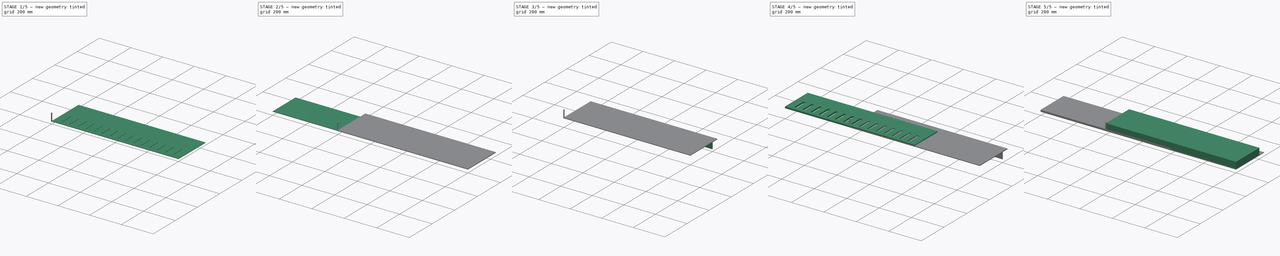
[diagram: build sequence overview — one tinted view per stage of 5, left to right]
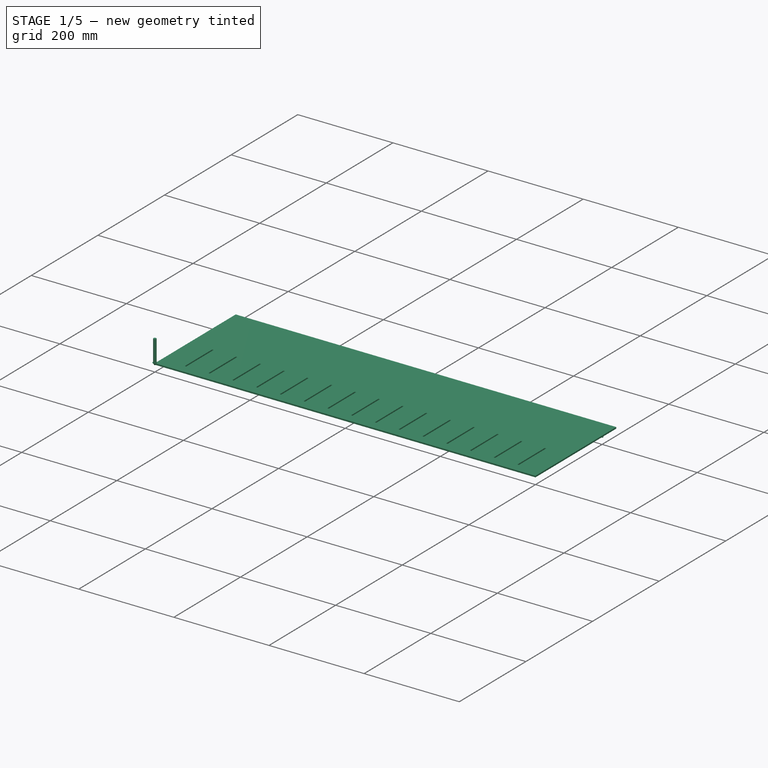
[diagram: stage 1 of 5 — iso view after this stage's code; geometry added in this stage tinted green]
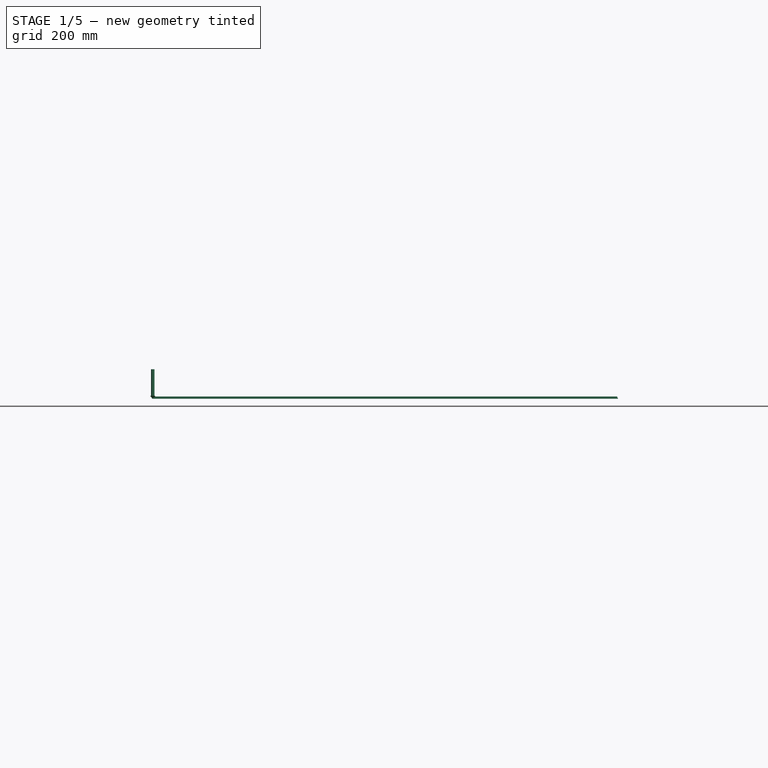
[diagram: stage 1 of 5 — front view after this stage's code; geometry added in this stage tinted green]
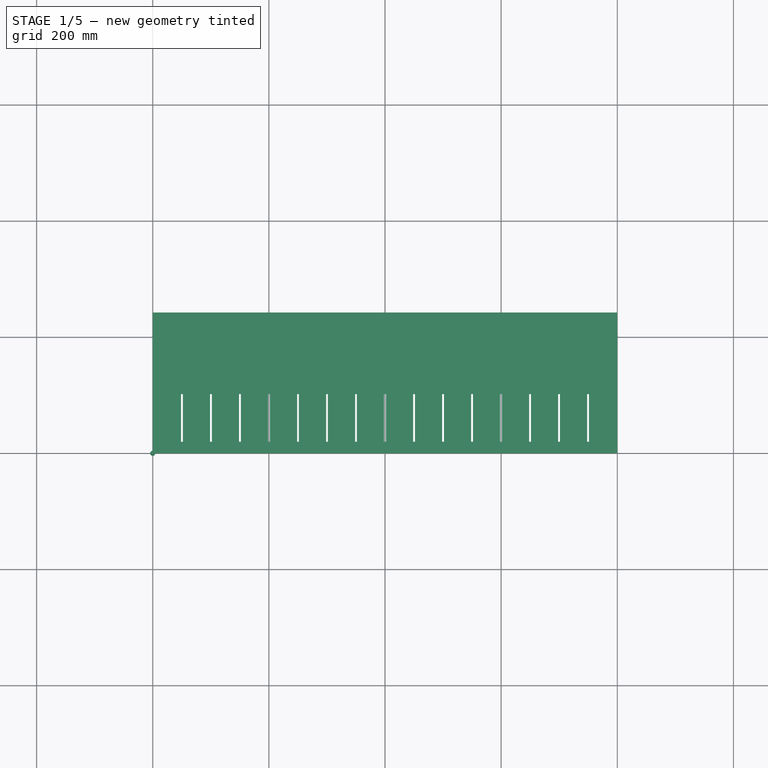
[diagram: stage 1 of 5 — top view after this stage's code; geometry added in this stage tinted green]
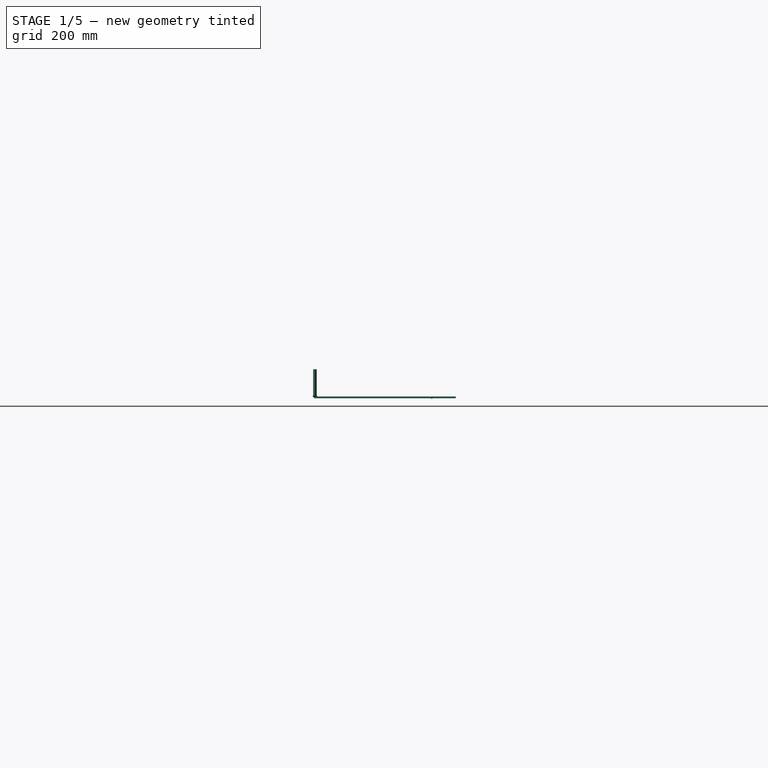
[diagram: stage 1 of 5 — right view after this stage's code; geometry added in this stage tinted green]
FCSTD DOCUMENT  (FreeCAD 0.20R29410 (Git))
Label: plywood_cutting_shield
License: All rights reserved
LicenseURL: http://en.wikipedia.org/wiki/All_rights_reserved
objects: Path::FeaturePython×14, App::DocumentObjectGroup×12, Part::FeaturePython×11, Sketcher::SketchObject×8, PartDesign::LinearPattern×4, App::FeaturePython×4, PartDesign::Pad×2, PartDesign::Pocket×2, PartDesign::MultiTransform×2, PartDesign::Body×2, PartDesign::Mirrored×1, PartDesign::CoordinateSystem×1, PartDesign::FeaturePython×1, Part::Feature×1, Part::Part2DObjectPython×1
note: 44 computed .brp shape members not serialized (recipe doc carries the construction recipe); baked Part::Feature solids carry a one-line shape summary decoded from their .brp
EXTERNAL_REF file=cutting_roll.FCStd obj=Sketch001
EXTERNAL_REF file=cutting_roll.FCStd obj=Pad

FEATURE [Path::FeaturePython] Job  # Path/CAM operation (typed FeaturePython)
  CycleTime = 00:03:06
  Fixtures = G54
  GeometryTolerance = 0.01
  JobType = 0
  LastPostProcessDate = 2022-12-21 19:00:36.126258
  LastPostProcessOutput = <userpath>/B653-DC8A/plywood_cutting_shield.Job.tap
  Model = -> Model
  Operations = -> Operations
  OrderOutputBy = 0
  PostProcessor = 11
  PostProcessorOutputFile = %d.%j.tap
  SetupSheet = -> SetupSheet
  SplitOutput = false
  Stock = -> Stock
  Tools = -> Tools
FEATURE [App::FeaturePython] SetupSheet002  # Path/CAM operation (typed FeaturePython)
  ClearanceHeightExpression = OpStockZMax+SetupSheet002.ClearanceHeightOffset
  ClearanceHeightOffset = 5
  CoolantMode = 0
  CoolantModes = None | Flood | Mist
  FinalDepthExpression = OpFinalDepth
  HorizRapid = 0
  SafeHeightExpression = OpStockZMax+SetupSheet002.SafeHeightOffset
  SafeHeightOffset = 3
  StartDepthExpression = OpStartDepth
  StepDownExpression = OpToolDiameter
  VertRapid = 0
FEATURE [Part::FeaturePython] ToolBit003  label="3.175mm Endmill010"  # Path/CAM toolbit (typed FeaturePython)
  BitPropertyNames = Chipload | CuttingEdgeHeight | Diameter | Flutes | Length | Material | ShankDiameter | SpindleDirection
  BitShape = <path>
  Chipload = 0
  CuttingEdgeHeight = 30
  Diameter = 3.17
  File = <userpath>/.local/share/FreeCAD/Macro/Bit/3.175mm_Endmill.fctb
  Flutes = 0
  Length = 10
  Material = 0
  ShankDiameter = 3
  ShapeName = endmill
  SpindleDirection = 0
FEATURE [Path::FeaturePython] __175mm_Endmill010  label="3.175mm Endmill011"  # Path/CAM operation (typed FeaturePython)
  HorizFeed = 51.6667
  HorizRapid = 0
  SpindleDir = 0
  SpindleSpeed = 21000
  Tool = -> ToolBit003
  ToolNumber = 2
  VertFeed = 16.6667
  VertRapid = 0
  expr: HorizRapid = SetupSheet002.HorizRapid
  expr: VertRapid = SetupSheet002.VertRapid
FEATURE [App::DocumentObjectGroup] Tools002
  Group = -> [__175mm_Endmill010]
FEATURE [Path::FeaturePython] Pocket3D001  # Path/CAM operation (typed FeaturePython)
  Active = true
  AdaptivePocketFinish = false
  AdaptivePocketStart = false
  AreaParams:
    Tolerance = 1e-07
    FitArcs = True
    Simplify = False
    CleanDistance = 0.0
    Accuracy = 0.01
    Unit = 1.0
    MinArcPoints = 4
    MaxArcPoints = 100
    ClipperScale = 10000000.0
    Fill = 0
    Coplanar = 0
    Reorient = True
    Outline = False
    Explode = False
    OpenMode = 0
    Deflection = 0.01
    SubjectFill = 0
    ClipFill = 0
    Offset = 0.0
    ExtraPass = 0
    Stepover = 0.0
    LastStepover = 0.0
    JoinType = 0
    EndType = 0
    MiterLimit = 2.0
    RoundPrecision = 0.0
    PocketMode = 1
    ToolRadius = 1.585
    PocketExtraOffset = 0.0
    PocketStepover = 3.17
    PocketLastStepover = 0.0
    FromCenter = True
    Angle = 45.0
    AngleShift = 0.0
    Shift = 0.0
    Thicken = False
    SectionCount = -1
    Stepdown = 1.0
    SectionOffset = 0.0
    SectionTolerance = 1e-06
    SectionMode = 2
    Project = False
  ClearanceHeight = 9
  CoolantMode = 0
  CutMode = 0
  CycleTime = 00:01:19
  ExtraOffset = 0
  FinalDepth = 0
  FinishDepth = 0
  HandleMultipleFeatures = 0
  KeepToolDown = true
  MinTravel = true
  OffsetPattern = 0
  OpFinalDepth = 0
  OpStartDepth = 4
  OpStockZMax = 4
  OpStockZMin = -0.1
  OpToolDiameter = 3.17
  PathParams = {'orientation': 1, 'sort_mode': 3, 'threshold': 3.171585, 'feedrate': 51.666666666666664, 'feedrate_v': 16.666666666666668, 'verbose': True, 'resume_height': 7.0, 'retraction': 9.0, 'return_end': True, 'preamble': False, 'start': Vector (0.0, 0.0, 0.0)}
  PocketLastStepOver = 0
  ProcessStockArea = false
  SafeHeight = 7
  SplitArcs = false
  StartAt = 0
  StartDepth = 4
  StartPoint = (0,0,0)
  StepDown = 3.17
  StepOver = 100
  ToolController = -> __175mm_Endmill010
  UseStartPoint = true
  ZigZagAngle = 45
  expr: ClearanceHeight = OpStockZMax + SetupSheet002.ClearanceHeightOffset
  expr: FinalDepth = OpFinalDepth
  expr: OpFinalDepth = 0mm
  expr: SafeHeight = OpStockZMax + SetupSheet002.SafeHeightOffset
  expr: StartDepth = OpStartDepth
  expr: StepDown = OpToolDiameter
FEATURE [Part::Feature] Unfold
  shape: bbox 800 x 242.5 x 3 mm, 66 faces (baked)
FEATURE [Sketcher::SketchObject] Unfold_Sketch
  FullyConstrained = false
  sketch-geometry (64):
    g0: LineSegment StartX=800 StartY=242.513 StartZ=0 EndX=0 EndY=242.513 EndZ=0
    g1: LineSegment StartX=0 StartY=242.513 StartZ=0 EndX=0 EndY=0 EndZ=0
    g2: LineSegment StartX=0 StartY=0 StartZ=0 EndX=800 EndY=0 EndZ=0
    g3: LineSegment StartX=800 StartY=0 StartZ=0 EndX=800 EndY=242.513 EndZ=0
    g4: LineSegment StartX=448.36 StartY=102 StartZ=0 EndX=451.54 EndY=102 EndZ=0
    g5: LineSegment StartX=451.54 StartY=102 StartZ=0 EndX=451.54 EndY=20 EndZ=0
    g6: LineSegment StartX=451.54 StartY=20 StartZ=0 EndX=448.36 EndY=20 EndZ=0
    g7: LineSegment StartX=448.36 StartY=20 StartZ=0 EndX=448.36 EndY=102 EndZ=0
    g8: LineSegment StartX=401.59 StartY=20 StartZ=0 EndX=398.41 EndY=20 EndZ=0
    g9: LineSegment StartX=398.41 StartY=102 StartZ=0 EndX=398.41 EndY=20 EndZ=0
    g10: LineSegment StartX=401.59 StartY=102 StartZ=0 EndX=398.41 EndY=102 EndZ=0
    g11: LineSegment StartX=401.59 StartY=102 StartZ=0 EndX=401.59 EndY=20 EndZ=0
    g12: LineSegment StartX=498.31 StartY=102 StartZ=0 EndX=501.49 EndY=102 EndZ=0
    g13: LineSegment StartX=501.49 StartY=102 StartZ=0 EndX=501.49 EndY=20 EndZ=0
    g14: LineSegment StartX=501.49 StartY=20 StartZ=0 EndX=498.31 EndY=20 EndZ=0
    g15: LineSegment StartX=498.31 StartY=20 StartZ=0 EndX=498.31 EndY=102 EndZ=0
    g16: LineSegment StartX=348.46 StartY=20 StartZ=0 EndX=351.64 EndY=20 EndZ=0
    g17: LineSegment StartX=348.46 StartY=102 StartZ=0 EndX=348.46 EndY=20 EndZ=0
    g18: LineSegment StartX=351.64 StartY=102 StartZ=0 EndX=348.46 EndY=102 EndZ=0
    g19: LineSegment StartX=351.64 StartY=20 StartZ=0 EndX=351.64 EndY=102 EndZ=0
    g20: LineSegment StartX=298.51 StartY=20 StartZ=0 EndX=301.69 EndY=20 EndZ=0
    g21: LineSegment StartX=298.51 StartY=102 StartZ=0 EndX=298.51 EndY=20 EndZ=0
    g22: LineSegment StartX=301.69 StartY=102 StartZ=0 EndX=298.51 EndY=102 EndZ=0
    g23: LineSegment StartX=301.69 StartY=20 StartZ=0 EndX=301.69 EndY=102 EndZ=0
    g24: LineSegment StartX=548.26 StartY=102 StartZ=0 EndX=551.44 EndY=102 EndZ=0
    g25: LineSegment StartX=551.44 StartY=102 StartZ=0 EndX=551.44 EndY=20 EndZ=0
    g26: LineSegment StartX=551.44 StartY=20 StartZ=0 EndX=548.26 EndY=20 EndZ=0
    g27: LineSegment StartX=548.26 StartY=20 StartZ=0 EndX=548.26 EndY=102 EndZ=0
    g28: LineSegment StartX=598.21 StartY=102 StartZ=0 EndX=601.39 EndY=102 EndZ=0
    g29: LineSegment StartX=601.39 StartY=102 StartZ=0 EndX=601.39 EndY=20 EndZ=0
    g30: LineSegment StartX=601.39 StartY=20 StartZ=0 EndX=598.21 EndY=20 EndZ=0
    g31: LineSegment StartX=598.21 StartY=20 StartZ=0 EndX=598.21 EndY=102 EndZ=0
    g32: LineSegment StartX=648.16 StartY=102 StartZ=0 EndX=651.34 EndY=102 EndZ=0
    g33: LineSegment StartX=651.34 StartY=102 StartZ=0 EndX=651.34 EndY=20 EndZ=0
    g34: LineSegment StartX=651.34 StartY=20 StartZ=0 EndX=648.16 EndY=20 EndZ=0
    g35: LineSegment StartX=648.16 StartY=20 StartZ=0 EndX=648.16 EndY=102 EndZ=0
    g36: LineSegment StartX=248.56 StartY=20 StartZ=0 EndX=251.74 EndY=20 EndZ=0
    g37: LineSegment StartX=248.56 StartY=102 StartZ=0 EndX=248.56 EndY=20 EndZ=0
    g38: LineSegment StartX=251.74 StartY=102 StartZ=0 EndX=248.56 EndY=102 EndZ=0
    g39: LineSegment StartX=251.74 StartY=20 StartZ=0 EndX=251.74 EndY=102 EndZ=0
    g40: LineSegment StartX=198.61 StartY=20 StartZ=0 EndX=201.79 EndY=20 EndZ=0
    g41: LineSegment StartX=198.61 StartY=102 StartZ=0 EndX=198.61 EndY=20 EndZ=0
    g42: LineSegment StartX=201.79 StartY=102 StartZ=0 EndX=198.61 EndY=102 EndZ=0
    g43: LineSegment StartX=201.79 StartY=20 StartZ=0 EndX=201.79 EndY=102 EndZ=0
    g44: LineSegment StartX=148.66 StartY=20 StartZ=0 EndX=151.84 EndY=20 EndZ=0
    g45: LineSegment StartX=148.66 StartY=102 StartZ=0 EndX=148.66 EndY=20 EndZ=0
    g46: LineSegment StartX=151.84 StartY=102 StartZ=0 EndX=148.66 EndY=102 EndZ=0
    g47: LineSegment StartX=151.84 StartY=20 StartZ=0 EndX=151.84 EndY=102 EndZ=0
    g48: LineSegment StartX=698.11 StartY=102 StartZ=0 EndX=701.29 EndY=102 EndZ=0
    g49: LineSegment StartX=701.29 StartY=102 StartZ=0 EndX=701.29 EndY=20 EndZ=0
    g50: LineSegment StartX=701.29 StartY=20 StartZ=0 EndX=698.11 EndY=20 EndZ=0
    g51: LineSegment StartX=698.11 StartY=20 StartZ=0 EndX=698.11 EndY=102 EndZ=0
    g52: LineSegment StartX=98.71 StartY=20 StartZ=0 EndX=101.89 EndY=20 EndZ=0
    g53: LineSegment StartX=98.71 StartY=102 StartZ=0 EndX=98.71 EndY=20 EndZ=0
    g54: LineSegment StartX=101.89 StartY=102 StartZ=0 EndX=98.71 EndY=102 EndZ=0
    g55: LineSegment StartX=101.89 StartY=20 StartZ=0 EndX=101.89 EndY=102 EndZ=0
    g56: LineSegment StartX=748.06 StartY=102 StartZ=0 EndX=751.24 EndY=102 EndZ=0
    g57: LineSegment StartX=751.24 StartY=102 StartZ=0 EndX=751.24 EndY=20 EndZ=0
    g58: LineSegment StartX=751.24 StartY=20 StartZ=0 EndX=748.06 EndY=20 EndZ=0
    g59: LineSegment StartX=748.06 StartY=20 StartZ=0 EndX=748.06 EndY=102 EndZ=0
    g60: LineSegment StartX=48.76 StartY=20 StartZ=0 EndX=51.94 EndY=20 EndZ=0
    g61: LineSegment StartX=48.76 StartY=102 StartZ=0 EndX=48.76 EndY=20 EndZ=0
    g62: LineSegment StartX=51.94 StartY=102 StartZ=0 EndX=48.76 EndY=102 EndZ=0
    g63: LineSegment StartX=51.94 StartY=20 StartZ=0 EndX=51.94 EndY=102 EndZ=0
FEATURE [Sketcher::SketchObject] Unfold_Sketch_Outline
  FullyConstrained = false
  sketch-geometry (4):
    g0: LineSegment StartX=800 StartY=242.513 StartZ=0 EndX=0 EndY=242.513 EndZ=0
    g1: LineSegment StartX=0 StartY=242.513 StartZ=0 EndX=0 EndY=0 EndZ=0
    g2: LineSegment StartX=0 StartY=0 StartZ=0 EndX=800 EndY=0 EndZ=0
    g3: LineSegment StartX=800 StartY=0 StartZ=0 EndX=800 EndY=242.513 EndZ=0
FEATURE [Sketcher::SketchObject] Unfold_Sketch_Internal
  FullyConstrained = false
  sketch-geometry (60):
    g0: LineSegment StartX=48.76 StartY=20 StartZ=0 EndX=51.94 EndY=20 EndZ=0
    g1: LineSegment StartX=51.94 StartY=20 StartZ=0 EndX=51.94 EndY=102 EndZ=0
    g2: LineSegment StartX=51.94 StartY=102 StartZ=0 EndX=48.76 EndY=102 EndZ=0
    g3: LineSegment StartX=48.76 StartY=102 StartZ=0 EndX=48.76 EndY=20 EndZ=0
    g4: LineSegment StartX=748.06 StartY=102 StartZ=0 EndX=751.24 EndY=102 EndZ=0
    g5: LineSegment StartX=751.24 StartY=102 StartZ=0 EndX=751.24 EndY=20 EndZ=0
    g6: LineSegment StartX=751.24 StartY=20 StartZ=0 EndX=748.06 EndY=20 EndZ=0
    g7: LineSegment StartX=748.06 StartY=20 StartZ=0 EndX=748.06 EndY=102 EndZ=0
    g8: LineSegment StartX=98.71 StartY=20 StartZ=0 EndX=101.89 EndY=20 EndZ=0
    g9: LineSegment StartX=101.89 StartY=20 StartZ=0 EndX=101.89 EndY=102 EndZ=0
    g10: LineSegment StartX=101.89 StartY=102 StartZ=0 EndX=98.71 EndY=102 EndZ=0
    g11: LineSegment StartX=98.71 StartY=102 StartZ=0 EndX=98.71 EndY=20 EndZ=0
    g12: LineSegment StartX=148.66 StartY=20 StartZ=0 EndX=151.84 EndY=20 EndZ=0
    g13: LineSegment StartX=151.84 StartY=20 StartZ=0 EndX=151.84 EndY=102 EndZ=0
    g14: LineSegment StartX=151.84 StartY=102 StartZ=0 EndX=148.66 EndY=102 EndZ=0
    g15: LineSegment StartX=148.66 StartY=102 StartZ=0 EndX=148.66 EndY=20 EndZ=0
    g16: LineSegment StartX=198.61 StartY=20 StartZ=0 EndX=201.79 EndY=20 EndZ=0
    g17: LineSegment StartX=201.79 StartY=20 StartZ=0 EndX=201.79 EndY=102 EndZ=0
    g18: LineSegment StartX=201.79 StartY=102 StartZ=0 EndX=198.61 EndY=102 EndZ=0
    g19: LineSegment StartX=198.61 StartY=102 StartZ=0 EndX=198.61 EndY=20 EndZ=0
    g20: LineSegment StartX=248.56 StartY=20 StartZ=0 EndX=251.74 EndY=20 EndZ=0
    g21: LineSegment StartX=251.74 StartY=20 StartZ=0 EndX=251.74 EndY=102 EndZ=0
    g22: LineSegment StartX=251.74 StartY=102 StartZ=0 EndX=248.56 EndY=102 EndZ=0
    g23: LineSegment StartX=248.56 StartY=102 StartZ=0 EndX=248.56 EndY=20 EndZ=0
    g24: LineSegment StartX=648.16 StartY=102 StartZ=0 EndX=651.34 EndY=102 EndZ=0
    g25: LineSegment StartX=651.34 StartY=102 StartZ=0 EndX=651.34 EndY=20 EndZ=0
    g26: LineSegment StartX=651.34 StartY=20 StartZ=0 EndX=648.16 EndY=20 EndZ=0
    g27: LineSegment StartX=648.16 StartY=20 StartZ=0 EndX=648.16 EndY=102 EndZ=0
    g28: LineSegment StartX=598.21 StartY=102 StartZ=0 EndX=601.39 EndY=102 EndZ=0
    g29: LineSegment StartX=601.39 StartY=102 StartZ=0 EndX=601.39 EndY=20 EndZ=0
    g30: LineSegment StartX=601.39 StartY=20 StartZ=0 EndX=598.21 EndY=20 EndZ=0
    g31: LineSegment StartX=598.21 StartY=20 StartZ=0 EndX=598.21 EndY=102 EndZ=0
    g32: LineSegment StartX=548.26 StartY=102 StartZ=0 EndX=551.44 EndY=102 EndZ=0
    g33: LineSegment StartX=551.44 StartY=102 StartZ=0 EndX=551.44 EndY=20 EndZ=0
    g34: LineSegment StartX=551.44 StartY=20 StartZ=0 EndX=548.26 EndY=20 EndZ=0
    g35: LineSegment StartX=548.26 StartY=20 StartZ=0 EndX=548.26 EndY=102 EndZ=0
    g36: LineSegment StartX=298.51 StartY=20 StartZ=0 EndX=301.69 EndY=20 EndZ=0
    g37: LineSegment StartX=301.69 StartY=20 StartZ=0 EndX=301.69 EndY=102 EndZ=0
    g38: LineSegment StartX=301.69 StartY=102 StartZ=0 EndX=298.51 EndY=102 EndZ=0
    g39: LineSegment StartX=298.51 StartY=102 StartZ=0 EndX=298.51 EndY=20 EndZ=0
    g40: LineSegment StartX=348.46 StartY=20 StartZ=0 EndX=351.64 EndY=20 EndZ=0
    g41: LineSegment StartX=351.64 StartY=20 StartZ=0 EndX=351.64 EndY=102 EndZ=0
    g42: LineSegment StartX=351.64 StartY=102 StartZ=0 EndX=348.46 EndY=102 EndZ=0
    g43: LineSegment StartX=348.46 StartY=102 StartZ=0 EndX=348.46 EndY=20 EndZ=0
    g44: LineSegment StartX=498.31 StartY=102 StartZ=0 EndX=501.49 EndY=102 EndZ=0
    g45: LineSegment StartX=501.49 StartY=102 StartZ=0 EndX=501.49 EndY=20 EndZ=0
    g46: LineSegment StartX=501.49 StartY=20 StartZ=0 EndX=498.31 EndY=20 EndZ=0
    g47: LineSegment StartX=498.31 StartY=20 StartZ=0 EndX=498.31 EndY=102 EndZ=0
    g48: LineSegment StartX=401.59 StartY=20 StartZ=0 EndX=398.41 EndY=20 EndZ=0
    g49: LineSegment StartX=398.41 StartY=102 StartZ=0 EndX=398.41 EndY=20 EndZ=0
    g50: LineSegment StartX=401.59 StartY=102 StartZ=0 EndX=398.41 EndY=102 EndZ=0
    g51: LineSegment StartX=401.59 StartY=102 StartZ=0 EndX=401.59 EndY=20 EndZ=0
    g52: LineSegment StartX=448.36 StartY=102 StartZ=0 EndX=451.54 EndY=102 EndZ=0
    g53: LineSegment StartX=451.54 StartY=102 StartZ=0 EndX=451.54 EndY=20 EndZ=0
    g54: LineSegment StartX=451.54 StartY=20 StartZ=0 EndX=448.36 EndY=20 EndZ=0
    g55: LineSegment StartX=448.36 StartY=20 StartZ=0 EndX=448.36 EndY=102 EndZ=0
    g56: LineSegment StartX=698.11 StartY=102 StartZ=0 EndX=701.29 EndY=102 EndZ=0
    g57: LineSegment StartX=701.29 StartY=102 StartZ=0 EndX=701.29 EndY=20 EndZ=0
    g58: LineSegment StartX=701.29 StartY=20 StartZ=0 EndX=698.11 EndY=20 EndZ=0
    g59: LineSegment StartX=698.11 StartY=20 StartZ=0 EndX=698.11 EndY=102 EndZ=0
FEATURE [Sketcher::SketchObject] Unfold_Sketch_bends
  FullyConstrained = false
  sketch-geometry (1):
    g0: LineSegment StartX=0 StartY=201.257 StartZ=0 EndX=800 EndY=201.257 EndZ=0
FEATURE [Part::FeaturePython] Clone002  label="Model-Unfold"  # Draft clone (typed FeaturePython)
  AttacherType = Attacher::AttachEngine3D
  Fuse = false
  Objects = -> [Unfold]
  PathResource = Model
  Scale = (1,1,1)
FEATURE [App::FeaturePython] SetupSheet003  # Path/CAM operation (typed FeaturePython)
  ClearanceHeightExpression = OpStockZMax+SetupSheet003.ClearanceHeightOffset
  ClearanceHeightOffset = 5
  CoolantMode = 0
  CoolantModes = None | Flood | Mist
  FinalDepthExpression = OpFinalDepth
  HorizRapid = 0
  SafeHeightExpression = OpStockZMax+SetupSheet003.SafeHeightOffset
  SafeHeightOffset = 3
  StartDepthExpression = OpStartDepth
  StepDownExpression = OpToolDiameter
  VertRapid = 0
FEATURE [Part::Part2DObjectPython] Clone2D  label="Model-Unfold_Sketch_bends"  # Draft 2D object (typed FeaturePython)
  Fuse = false
  Objects = -> [Unfold_Sketch_bends]
  PathResource = Model
  Scale = (1,1,1)
FEATURE [App::DocumentObjectGroup] Model003
  Group = -> [Clone2D]
FEATURE [Part::FeaturePython] Stock003  # WARN: FeaturePython — macro-defined, semantics opaque (R4)
  Base = -> Model003
  ExtXneg = 1
  ExtXpos = 1
  ExtYneg = 1
  ExtYpos = 1
  ExtZneg = 1
  ExtZpos = 1
  Placement = pos=(0,201.257,0) rot=(0,0,1;0rad)
  StockType = FromBase
FEATURE [Part::FeaturePython] ToolBit004  label="NZV6109015"  # Path/CAM toolbit (typed FeaturePython)
  BitPropertyNames = Chipload | CuttingEdgeAngle | CuttingEdgeHeight | Diameter | Flutes | Length | Material | ShankDiameter | TipDiameter
  BitShape = <path>
  Chipload = 0
  CuttingEdgeAngle = 90
  CuttingEdgeHeight = 4
  Diameter = 10
  File = <userpath>/.local/share/FreeCAD/Macro/Bit/NZV6109010.fctb
  Flutes = 0
  Length = 50
  Material = 0
  ShankDiameter = 6
  ShapeName = chamfer
  TipDiameter = 1
FEATURE [Path::FeaturePython] NZV6109015  label="NZV6109016"  # Path/CAM operation (typed FeaturePython)
  HorizFeed = 51.6667
  HorizRapid = 0
  SpindleDir = 0
  SpindleSpeed = 18000
  Tool = -> ToolBit004
  ToolNumber = 2
  VertFeed = 16.6667
  VertRapid = 0
  expr: HorizRapid = SetupSheet003.HorizRapid
  expr: VertRapid = SetupSheet003.VertRapid
FEATURE [App::DocumentObjectGroup] Tools003
  Group = -> [NZV6109015]
FEATURE [Path::FeaturePython] Engrave  # Path/CAM operation (typed FeaturePython)
  Active = true
  Base = -> [Clone2D]
  ClearanceHeight = 6
  CoolantMode = 0
  CycleTime = 00:00:20
  FinalDepth = 0.4
  OpFinalDepth = -10
  OpStartDepth = 0
  OpStockZMax = 1
  OpStockZMin = -1
  OpToolDiameter = 10
  SafeHeight = 4
  StartDepth = 3
  StartVertex = 0
  StepDown = 10
  ToolController = -> NZV6109015
  expr: ClearanceHeight = OpStockZMax + SetupSheet003.ClearanceHeightOffset
  expr: FinalDepth = 0.4
  expr: SafeHeight = OpStockZMax + SetupSheet003.SafeHeightOffset
  expr: StartDepth = 3
  expr: StepDown = OpToolDiameter
FEATURE [App::DocumentObjectGroup] Operations003
  Group = -> [Engrave]
FEATURE [Path::FeaturePython] Job003  label="bend"  # Path/CAM operation (typed FeaturePython)
  CycleTime = 00:00:20
  Fixtures = G54
  GeometryTolerance = 0.01
  JobType = 0
  LastPostProcessDate = 2022-12-26 20:15:40.999140
  LastPostProcessOutput = <userpath>/B653-DC8A/plywood_cutting_shield.bend.tap
  Model = -> Model003
  Operations = -> Operations003
  OrderOutputBy = 0
  PostProcessor = 11
  PostProcessorOutputFile = %d.%j.tap
  SetupSheet = -> SetupSheet003
  SplitOutput = false
  Stock = -> Stock003
  Tools = -> Tools003
FEATURE [Path::FeaturePython] Profile001  # Path/CAM operation (typed FeaturePython)
  Active = true
  AreaParams:
    Tolerance = 1e-07
    FitArcs = True
    Simplify = False
    CleanDistance = 0.0
    Accuracy = 0.01
    Unit = 1.0
    MinArcPoints = 4
    MaxArcPoints = 100
    ClipperScale = 10000000.0
    Fill = 0
    Coplanar = 0
    Reorient = True
    Outline = False
    Explode = False
    OpenMode = 0
    Deflection = 0.01
    SubjectFill = 0
    ClipFill = 0
    Offset = 1.585
    ExtraPass = 0
    Stepover = 0.0
    LastStepover = 0.0
    JoinType = 0
    EndType = 0
    MiterLimit = 2.0
    RoundPrecision = 0.0
    PocketMode = 0
    ToolRadius = 1.0
    PocketExtraOffset = 0.0
    PocketStepover = 0.0
    PocketLastStepover = 0.0
    FromCenter = False
    Angle = 45.0
    AngleShift = 0.0
    Shift = 0.0
    Thicken = False
    SectionCount = -1
    Stepdown = 1.0
    SectionOffset = 0.0
    SectionTolerance = 1e-06
    SectionMode = 2
    Project = False
  ClearanceHeight = 9
  CoolantMode = 0
  CycleTime = 00:01:38
  Direction = 0
  FinalDepth = -0.1
  HandleMultipleFeatures = 0
  JoinType = 0
  MiterLimit = 0.1
  OffsetExtra = 0
  OpFinalDepth = -0.1
  OpStartDepth = 4
  OpStockZMax = 4
  OpStockZMin = -0.1
  OpToolDiameter = 3.17
  PathParams = {'orientation': 1, 'feedrate': 51.666666666666664, 'feedrate_v': 16.666666666666668, 'verbose': True, 'resume_height': 7.0, 'retraction': 9.0, 'return_end': True, 'preamble': False}
  SafeHeight = 7
  Side = 0
  SplitArcs = false
  StartDepth = 4
  StartPoint = (0,0,0)
  StepDown = 3.17
  ToolController = -> __175mm_Endmill010
  UseComp = true
  UseStartPoint = false
  processCircles = false
  processHoles = false
  processPerimeter = true
  expr: ClearanceHeight = OpStockZMax + SetupSheet002.ClearanceHeightOffset
  expr: FinalDepth = OpFinalDepth
  expr: SafeHeight = OpStockZMax + SetupSheet002.SafeHeightOffset
  expr: StartDepth = OpStartDepth
  expr: StepDown = OpToolDiameter
FEATURE [App::DocumentObjectGroup] Operations002
  Group = -> [Pocket3D001,Profile001]
FEATURE [Path::FeaturePython] Job002  label="profile"  # Path/CAM operation (typed FeaturePython)
  CycleTime = 00:02:57
  Fixtures = G54
  GeometryTolerance = 0.01
  JobType = 0
  LastPostProcessDate = 2022-12-26 20:15:33.071143
  LastPostProcessOutput = <userpath>/B653-DC8A/plywood_cutting_shield.profile.tap
  Model = -> Model002
  Operations = -> Operations002
  OrderOutputBy = 0
  PostProcessor = 11
  PostProcessorOutputFile = %d.%j.tap
  SetupSheet = -> SetupSheet002
  SplitOutput = false
  Stock = -> Stock002
  Tools = -> Tools002
note: 4 file-system paths scrubbed to <path> (originals preserved in the JSON sidecar)
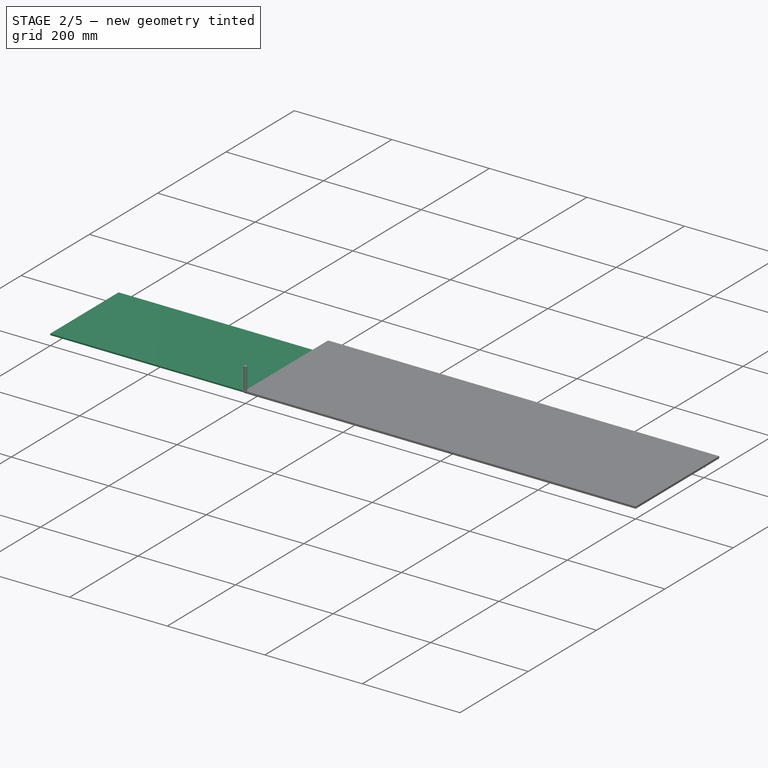
[diagram: stage 2 of 5 — iso view after this stage's code; geometry added in this stage tinted green]
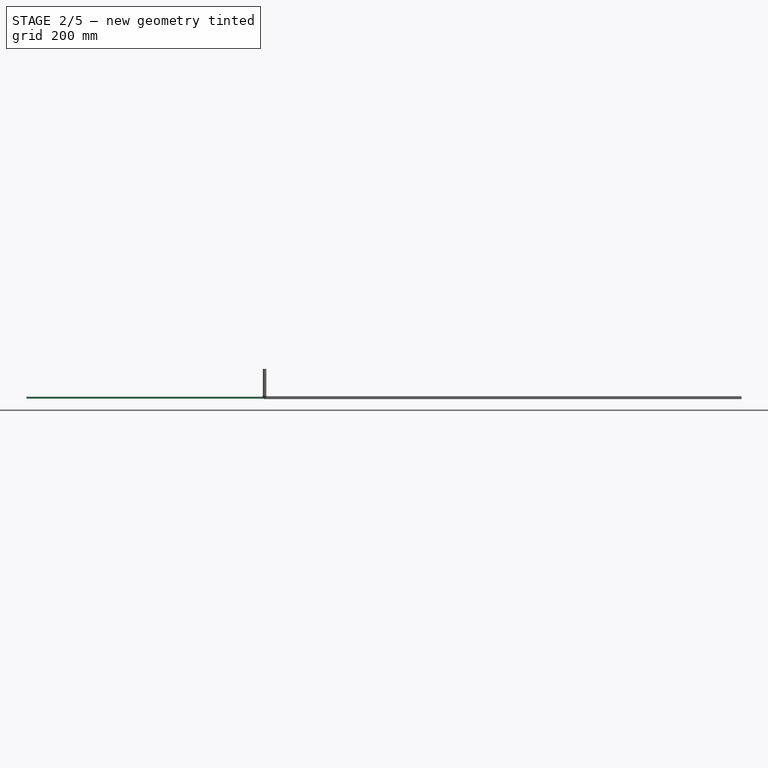
[diagram: stage 2 of 5 — front view after this stage's code; geometry added in this stage tinted green]
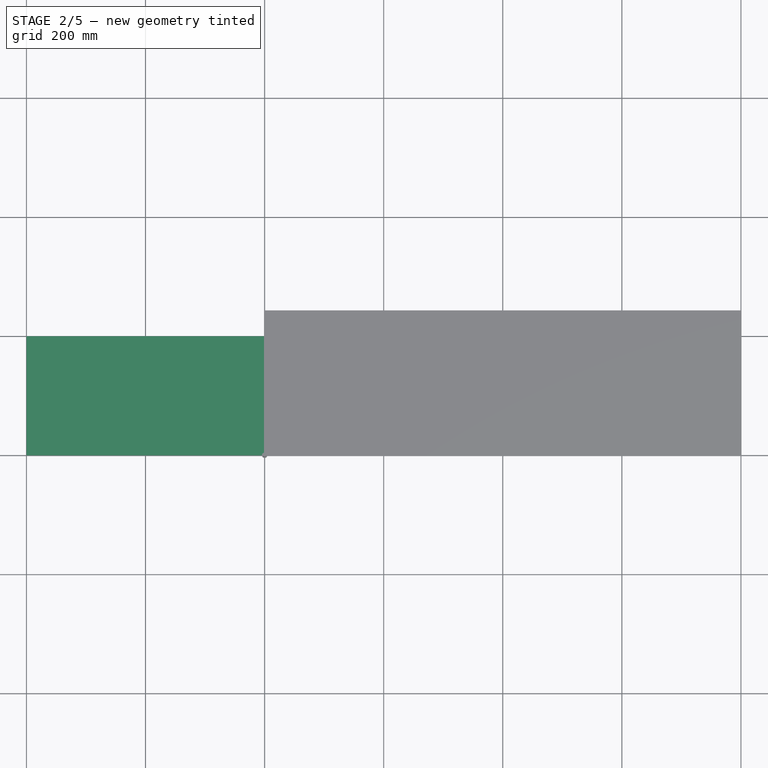
[diagram: stage 2 of 5 — top view after this stage's code; geometry added in this stage tinted green]
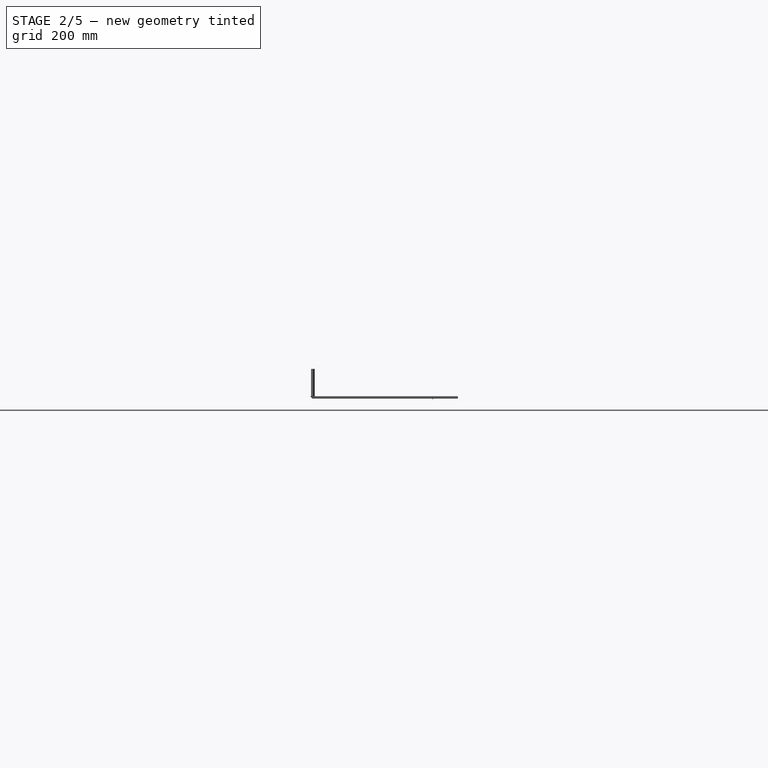
[diagram: stage 2 of 5 — right view after this stage's code; geometry added in this stage tinted green]
FEATURE [Sketcher::SketchObject] Sketch
  FullyConstrained = true
  MapMode = 5
  Support = -> [XY_Plane]
  sketch-geometry (4):
    g0: LineSegment StartX=0 StartY=0 StartZ=0 EndX=400 EndY=0 EndZ=0
    g1: LineSegment StartX=400 StartY=0 StartZ=0 EndX=400 EndY=200 EndZ=0
    g2: LineSegment StartX=400 StartY=200 StartZ=0 EndX=0 EndY=200 EndZ=0
    g3: LineSegment StartX=0 StartY=200 StartZ=0 EndX=0 EndY=0 EndZ=0
  constraints (11):
    c: Coincident(g0,g1)
    c: Coincident(g1,g2)
    c: Coincident(g2,g3)
    c: Coincident(g3,g0)
    c: Horizontal(g0)
    c: Horizontal(g2)
    c: Vertical(g1)
    c: Vertical(g3)
    c: Coincident(g0,g-1)
    c: Distance(g0) = 400
    c: Distance(g3) = 200
FEATURE [PartDesign::Pad] Pad
  Direction = (0,0,1)
  Length = 3
  Length2 = 10
  Profile = -> Sketch
  ReferenceAxis = -> Sketch [N_Axis]
  Type = 0
FEATURE [Sketcher::SketchObject] Sketch001
  AttachmentOffset = pos=(0,20,0) rot=(0,0,1;0rad)
  FullyConstrained = true
  MapMode = 5
  Placement = pos=(0,20,0) rot=(0,0,1;0rad)
  Support = -> [XY_Plane]
  expr: .Constraints.length = cutting_roll#<<disk_sketch>>.Constraints.r * 2 + 6mm
  sketch-geometry (5):
    g0: LineSegment StartX=1.59 StartY=0 StartZ=0 EndX=1.59 EndY=82 EndZ=0
    g1: LineSegment StartX=1.59 StartY=82 StartZ=0 EndX=-1.59 EndY=82 EndZ=0
    g2: LineSegment StartX=-1.59 StartY=82 StartZ=0 EndX=-1.59 EndY=0 EndZ=0
    g3: LineSegment StartX=-1.59 StartY=0 StartZ=0 EndX=0 EndY=0 EndZ=0
    g4: LineSegment StartX=0 StartY=0 StartZ=0 EndX=1.59 EndY=0 EndZ=0
  constraints (14):
    c: Coincident(g0,g1)
    c: Coincident(g1,g2)
    c: Horizontal(g1)
    c: Vertical(g0)
    c: Vertical(g2)
    c: PointOnObject(g2,g-1)
    c: Distance(g2) = 82  'length'
    c: Distance(g1) = 3.18  'width'
    c: Coincident(g3,g2)
    c: Coincident(g4,g0)
    c: Coincident(g3,g4)
    c: Horizontal(g4)
    c: Equal(g3,g4)
    c: Coincident(g-1,g3)
FEATURE [PartDesign::Pocket] Pocket
  BaseFeature = -> Pad
  Direction = (0,0,-1)
  Length = 5
  Length2 = 5
  Profile = -> Sketch001
  ReferenceAxis = -> Sketch001 [N_Axis]
  Reversed = true
  Type = 1
FEATURE [PartDesign::Mirrored] Mirrored
  BaseFeature = -> Pocket
  MirrorPlane = -> Sketch [V_Axis]
  Originals = -> [Pad]
FEATURE [App::DocumentObjectGroup] Model002
  Group = -> [Clone002]
FEATURE [Part::FeaturePython] Stock002  # WARN: FeaturePython — macro-defined, semantics opaque (R4)
  Base = -> Model002
  ExtXneg = 1
  ExtXpos = 1
  ExtYneg = 1
  ExtYpos = 1
  ExtZneg = 0.1
  ExtZpos = 1
  StockType = FromBase
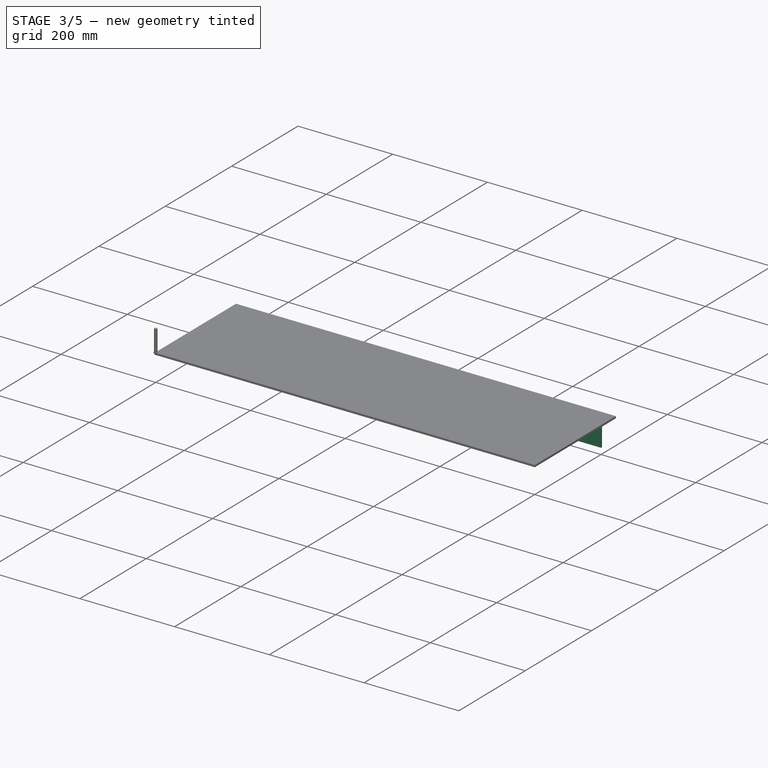
[diagram: stage 3 of 5 — iso view after this stage's code; geometry added in this stage tinted green]
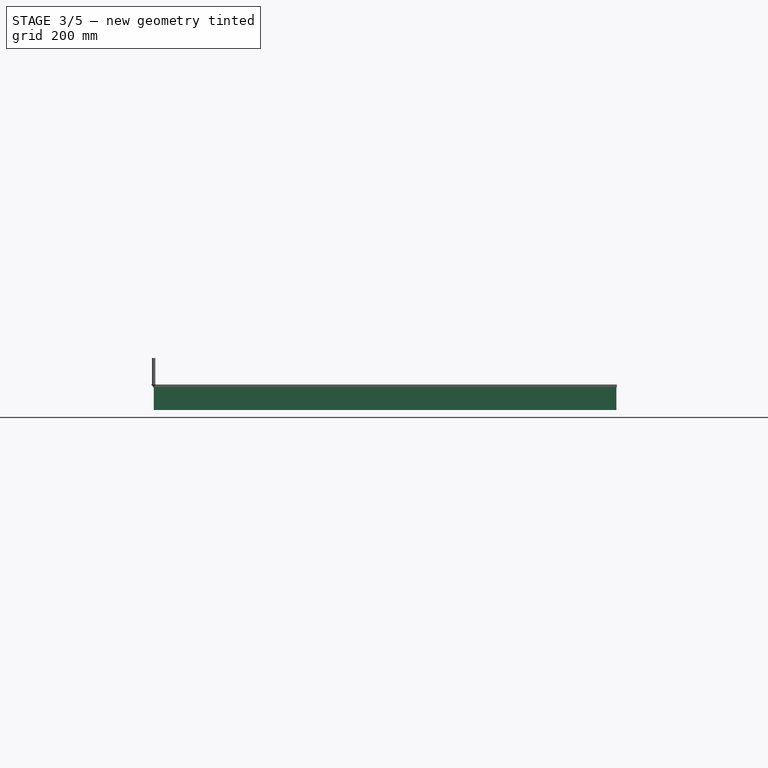
[diagram: stage 3 of 5 — front view after this stage's code; geometry added in this stage tinted green]
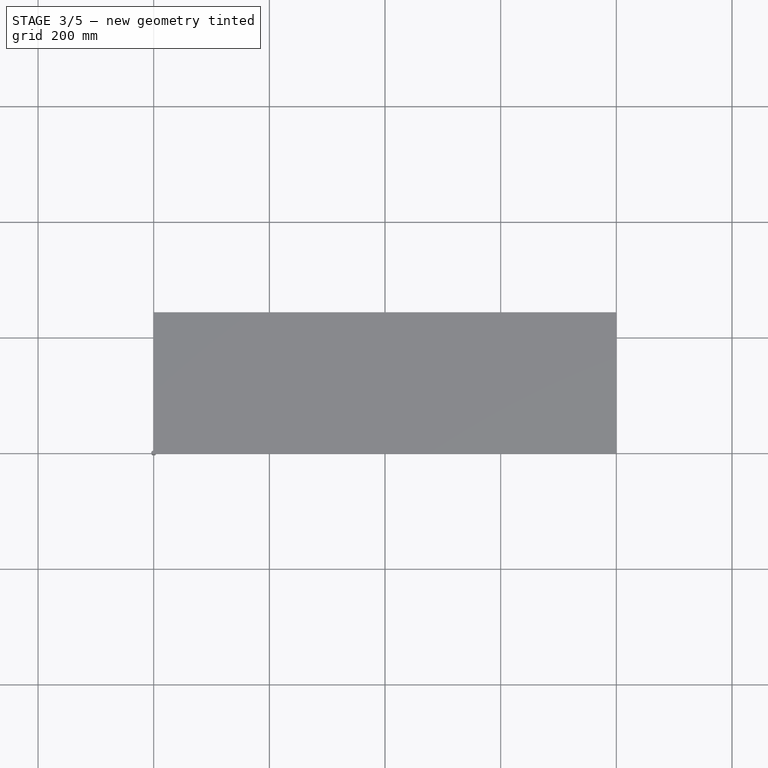
[diagram: stage 3 of 5 — top view after this stage's code; geometry added in this stage tinted green]
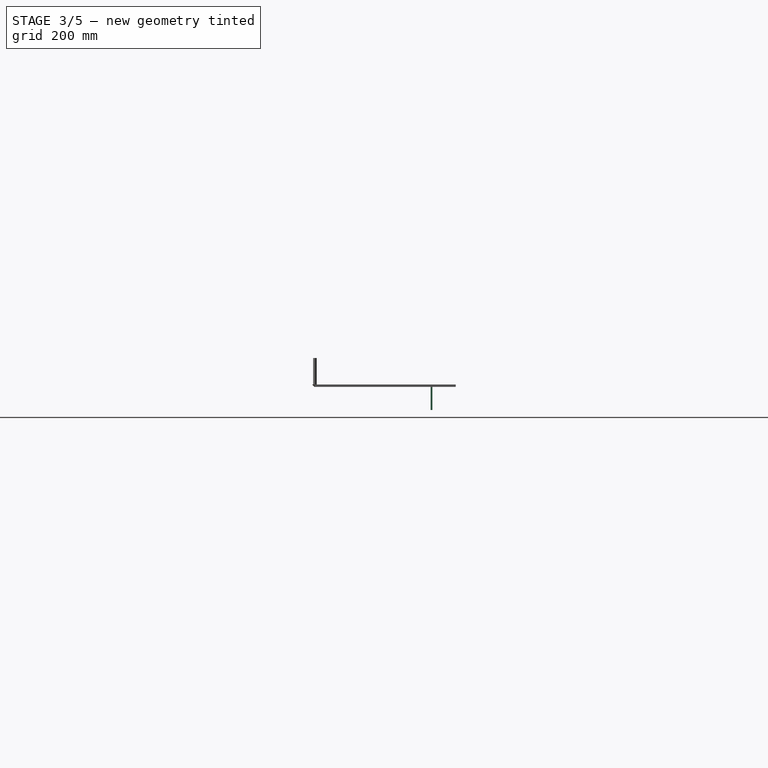
[diagram: stage 3 of 5 — right view after this stage's code; geometry added in this stage tinted green]
FEATURE [Path::FeaturePython] __175mm_Endmill007  label="3.175mm Endmill008"  # Path/CAM operation (typed FeaturePython)
  HorizFeed = 51.6667
  HorizRapid = 0
  SpindleDir = 0
  SpindleSpeed = 18000
  Tool = -> ToolBit001
  ToolNumber = 2
  VertFeed = 16.6667
  VertRapid = 0
  expr: HorizRapid = SetupSheet.HorizRapid
  expr: VertRapid = SetupSheet.VertRapid
FEATURE [App::DocumentObjectGroup] Tools
  Group = -> [__175mm_Endmill007]
FEATURE [Path::FeaturePython] Pocket3D  # Path/CAM operation (typed FeaturePython)
  Active = true
  AdaptivePocketFinish = false
  AdaptivePocketStart = false
  AreaParams:
    Tolerance = 1e-07
    FitArcs = True
    Simplify = False
    CleanDistance = 0.0
    Accuracy = 0.01
    Unit = 1.0
    MinArcPoints = 4
    MaxArcPoints = 100
    ClipperScale = 10000000.0
    Fill = 0
    Coplanar = 0
    Reorient = True
    Outline = False
    Explode = False
    OpenMode = 0
    Deflection = 0.01
    SubjectFill = 0
    ClipFill = 0
    Offset = 0.0
    ExtraPass = 0
    Stepover = 0.0
    LastStepover = 0.0
    JoinType = 0
    EndType = 0
    MiterLimit = 2.0
    RoundPrecision = 0.0
    PocketMode = 1
    ToolRadius = 1.585
    PocketExtraOffset = 0.0
    PocketStepover = 3.17
    PocketLastStepover = 0.0
    FromCenter = True
    Angle = 45.0
    AngleShift = 0.0
    Shift = 0.0
    Thicken = False
    SectionCount = -1
    Stepdown = 1.0
    SectionOffset = 0.0
    SectionTolerance = 1e-06
    SectionMode = 2
    Project = False
  ClearanceHeight = 15
  CoolantMode = 0
  CutMode = 0
  CycleTime = 00:03:06
  ExtraOffset = 0
  FinalDepth = 0
  FinishDepth = 0.1
  HandleMultipleFeatures = 0
  KeepToolDown = true
  MinTravel = true
  OffsetPattern = 0
  OpFinalDepth = 0
  OpStartDepth = 13.17
  OpStockZMax = 10
  OpStockZMin = -0.1
  OpToolDiameter = 3.17
  PathParams = {'orientation': 1, 'sort_mode': 3, 'threshold': 3.171585, 'feedrate': 51.666666666666664, 'feedrate_v': 16.666666666666668, 'verbose': True, 'resume_height': 13.0, 'retraction': 15.0, 'return_end': True, 'preamble': False, 'start': Vector (0.0, 0.0, 0.0)}
  PocketLastStepOver = 0
  ProcessStockArea = false
  SafeHeight = 13
  SplitArcs = false
  StartAt = 0
  StartDepth = 13.17
  StartPoint = (0,0,0)
  StepDown = 3.17
  StepOver = 100
  ToolController = -> __175mm_Endmill007
  UseStartPoint = true
  ZigZagAngle = 45
  expr: ClearanceHeight = OpStockZMax + SetupSheet.ClearanceHeightOffset
  expr: FinalDepth = OpFinalDepth
  expr: OpFinalDepth = 0mm
  expr: SafeHeight = OpStockZMax + SetupSheet.SafeHeightOffset
  expr: StartDepth = OpStartDepth
  expr: StepDown = OpToolDiameter
FEATURE [App::DocumentObjectGroup] Operations
  Group = -> [Pocket3D]
FEATURE [PartDesign::LinearPattern] LinearPattern001
  Direction = -> Sketch001 [H_Axis]
  Length = 349.65
  Occurrences = 8
  Reversed = true
  expr: Length = LinearPattern.Length
  expr: Occurrences = LinearPattern.Occurrences
FEATURE [PartDesign::MultiTransform] MultiTransform
  BaseFeature = -> Mirrored
  Originals = -> [Pocket]
  Refine = true
  Transformations = -> [LinearPattern,LinearPattern001]
FEATURE [Part::FeaturePython] ToolBit002  label="3.175mm Endmill"  # Path/CAM toolbit (typed FeaturePython)
  BitPropertyNames = Chipload | CuttingEdgeHeight | Diameter | Flutes | Length | Material | ShankDiameter | SpindleDirection
  BitShape = <path>
  Chipload = 0
  CuttingEdgeHeight = 30
  Diameter = 3.17
  File = <userpath>/.local/share/FreeCAD/Macro/Bit/3.175mm_Endmill.fctb
  Flutes = 0
  Length = 10
  Material = 0
  ShankDiameter = 3
  ShapeName = endmill
  SpindleDirection = 0
FEATURE [Path::FeaturePython] __175mm_Endmill  label="3.175mm Endmill009"  # Path/CAM operation (typed FeaturePython)
  HorizFeed = 51.6667
  HorizRapid = 0
  SpindleDir = 0
  SpindleSpeed = 21000
  Tool = -> ToolBit002
  ToolNumber = 2
  VertFeed = 16.6667
  VertRapid = 0
  expr: HorizRapid = SetupSheet001.HorizRapid
  expr: VertRapid = SetupSheet001.VertRapid
FEATURE [App::DocumentObjectGroup] Tools001
  Group = -> [__175mm_Endmill]
FEATURE [Path::FeaturePython] Profile  # Path/CAM operation (typed FeaturePython)
  Active = true
  AreaParams:
    Tolerance = 1e-07
    FitArcs = True
    Simplify = False
    CleanDistance = 0.0
    Accuracy = 0.01
    Unit = 1.0
    MinArcPoints = 4
    MaxArcPoints = 100
    ClipperScale = 10000000.0
    Fill = 0
    Coplanar = 0
    Reorient = True
    Outline = False
    Explode = False
    OpenMode = 0
    Deflection = 0.01
    SubjectFill = 0
    ClipFill = 0
    Offset = -1.585
    ExtraPass = 0
    Stepover = 0.0
    LastStepover = 0.0
    JoinType = 0
    EndType = 0
    MiterLimit = 2.0
    RoundPrecision = 0.0
    PocketMode = 0
    ToolRadius = 1.0
    PocketExtraOffset = 0.0
    PocketStepover = 0.0
    PocketLastStepover = 0.0
    FromCenter = False
    Angle = 45.0
    AngleShift = 0.0
    Shift = 0.0
    Thicken = False
    SectionCount = -1
    Stepdown = 1.0
    SectionOffset = 0.0
    SectionTolerance = 1e-06
    SectionMode = 2
    Project = False
  Base = -> [Clone001]
  ClearanceHeight = 16
  CoolantMode = 0
  CycleTime = 00:00:23
  Direction = 0
  FinalDepth = 0
  HandleMultipleFeatures = 0
  JoinType = 0
  MiterLimit = 0.1
  OffsetExtra = 0
  OpFinalDepth = 0
  OpStartDepth = 11
  OpStockZMax = 11
  OpStockZMin = -0.1
  OpToolDiameter = 3.17
  PathParams = {'orientation': 1, 'feedrate': 51.666666666666664, 'feedrate_v': 16.666666666666668, 'verbose': True, 'resume_height': 14.0, 'retraction': 16.0, 'return_end': True, 'preamble': False}
  SafeHeight = 14
  Side = 1
  SplitArcs = false
  StartDepth = 11
  StartPoint = (0,0,0)
  StepDown = 3.17
  ToolController = -> __175mm_Endmill
  UseComp = true
  UseStartPoint = false
  processCircles = false
  processHoles = false
  processPerimeter = true
  expr: ClearanceHeight = OpStockZMax + SetupSheet001.ClearanceHeightOffset
  expr: FinalDepth = OpFinalDepth
  expr: SafeHeight = OpStockZMax + SetupSheet001.SafeHeightOffset
  expr: StartDepth = OpStartDepth
  expr: StepDown = OpToolDiameter
FEATURE [Path::FeaturePython] Array001  # Path/CAM operation (typed FeaturePython)
  Active = true
  Angle = 0
  Base = -> [Profile]
  Centre = (0,0,0)
  Copies = 14
  CopiesX = 0
  CopiesY = 0
  JitterMagnitude = (0,0,0)
  JitterPercent = 0
  JitterSeed = 0
  Offset = (49.95,0,0)
  SwapDirection = false
  ToolController = -> __175mm_Endmill
  Type = 0
  expr: .Offset.x = LinearPattern002.Length / (LinearPattern002.Occurrences - 1)
FEATURE [App::DocumentObjectGroup] Operations001
  Group = -> [Profile,Array001]
FEATURE [Path::FeaturePython] Job001  # Path/CAM operation (typed FeaturePython)
  CycleTime = 00:00:23
  Fixtures = G54
  GeometryTolerance = 0.01
  JobType = 0
  LastPostProcessDate = 2022-12-22 13:36:54.214218
  LastPostProcessOutput = <userpath>/B653-DC8A/plywood_cutting_shield.Job001.tap
  Model = -> Model001
  Operations = -> Operations001
  OrderOutputBy = 0
  PostProcessor = 11
  PostProcessorOutputFile = %d.%j.tap
  SetupSheet = -> SetupSheet001
  SplitOutput = false
  Stock = -> Stock001
  Tools = -> Tools001
FEATURE [PartDesign::FeaturePython] Bend  # WARN: FeaturePython — macro-defined, semantics opaque (R4)
  AutoMiter = true
  BaseFeature = -> MultiTransform
  BendType = 0
  LengthList = [40]
  LengthSpec = 0
  Placement = pos=(400,0,0) rot=(0,0,1;0rad)
  ReliefFactor = 0.7
  UseReliefFactor = false
  angle = 90
  baseObject = -> MultiTransform [Edge176]
  bendAList = [90]
  extend1 = 0
  extend2 = 0
  gap1 = 0
  gap2 = 0
  invert = false
  kfactor = 0.5
  length = 40
  maxExtendDist = 5
  minGap = 0.1
  minReliefGap = 1
  miterangle1 = 0
  miterangle2 = 0
  offset = 0
  radius = 0.1
  reliefType = 0
  reliefd = 1
  reliefw = 0.8
  sketchflip = false
  sketchinvert = false
  unfold = false
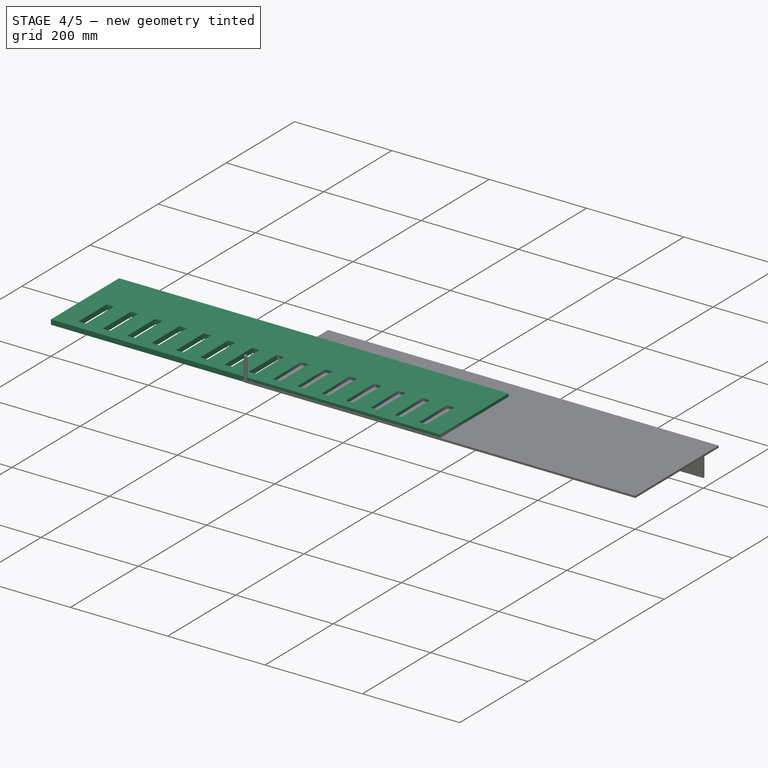
[diagram: stage 4 of 5 — iso view after this stage's code; geometry added in this stage tinted green]
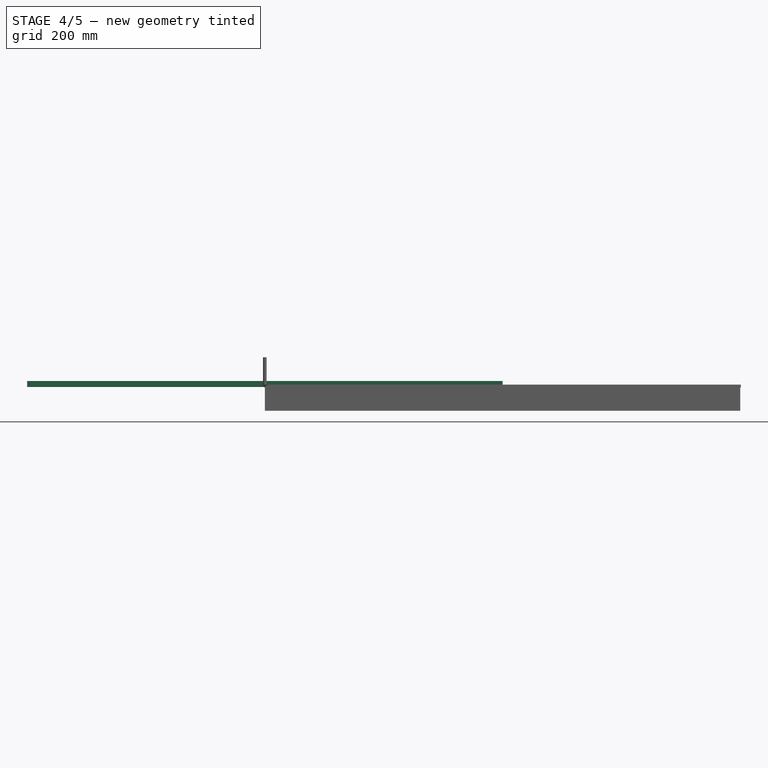
[diagram: stage 4 of 5 — front view after this stage's code; geometry added in this stage tinted green]
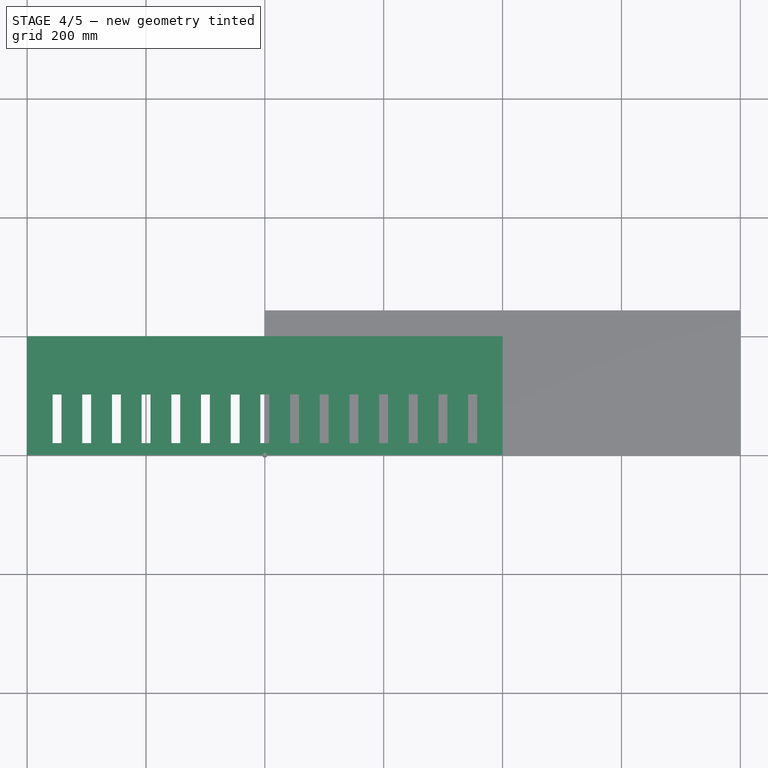
[diagram: stage 4 of 5 — top view after this stage's code; geometry added in this stage tinted green]
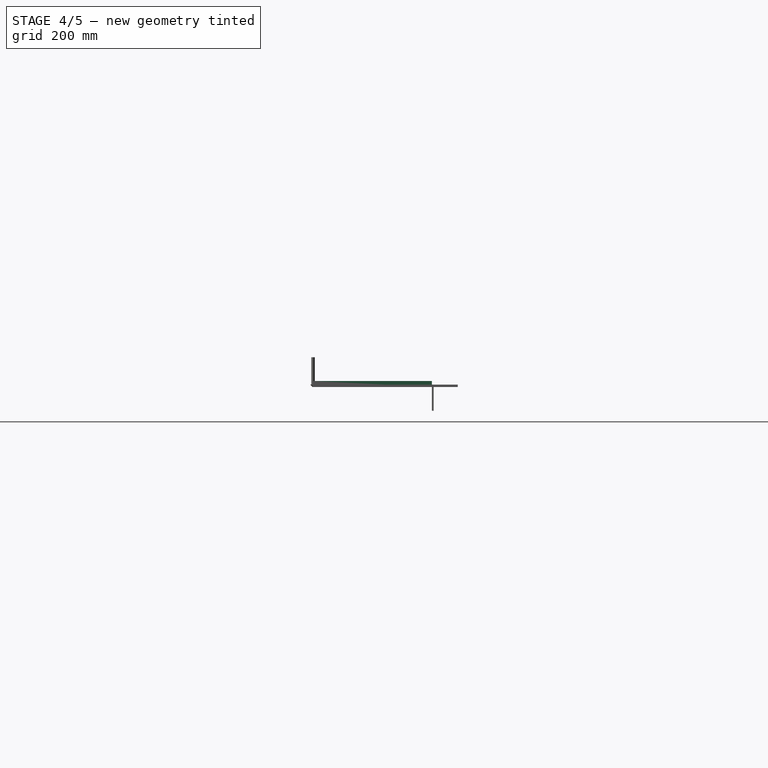
[diagram: stage 4 of 5 — right view after this stage's code; geometry added in this stage tinted green]
FEATURE [Sketcher::SketchObject] Sketch002
  FullyConstrained = true
  MapMode = 5
  Support = -> [XY_Plane001]
  sketch-geometry (5):
    g0: LineSegment StartX=-400 StartY=200 StartZ=0 EndX=-400 EndY=0 EndZ=0
    g1: LineSegment StartX=-400 StartY=0 StartZ=0 EndX=400 EndY=0 EndZ=0
    g2: LineSegment StartX=400 StartY=0 StartZ=0 EndX=400 EndY=200 EndZ=0
    g3: LineSegment StartX=400 StartY=200 StartZ=0 EndX=-400 EndY=200 EndZ=0
    g4: GeomPoint X=0 Y=100 Z=0
  constraints (13):
    c: Coincident(g0,g1)
    c: Coincident(g1,g2)
    c: Coincident(g2,g3)
    c: Coincident(g3,g0)
    c: Horizontal(g1)
    c: Horizontal(g3)
    c: Vertical(g0)
    c: Vertical(g2)
    c: Symmetric(g1,g0,g4)
    c: PointOnObject(g4,g-2)
    c: PointOnObject(g1,g-1)
    c: DistanceY(g2) = 200
    c: DistanceX(g1,g1) = 800
FEATURE [Sketcher::SketchObject] Sketch003
  AttachmentOffset = pos=(0,20,0) rot=(0,0,1;0rad)
  FullyConstrained = true
  MapMode = 5
  Placement = pos=(0,20,0) rot=(0,0,1;0rad)
  Support = -> [XY_Plane001]
  expr: .AttachmentOffset.Base.y = Sketch001.AttachmentOffset.Base.y
  expr: Constraints[11] = Sketch001.Constraints.length
  sketch-geometry (5):
    g0: LineSegment StartX=-7.5 StartY=82 StartZ=0 EndX=-7.5 EndY=0 EndZ=0
    g1: LineSegment StartX=-7.5 StartY=0 StartZ=0 EndX=7.5 EndY=0 EndZ=0
    g2: LineSegment StartX=7.5 StartY=0 StartZ=0 EndX=7.5 EndY=82 EndZ=0
    g3: LineSegment StartX=7.5 StartY=82 StartZ=0 EndX=-7.5 EndY=82 EndZ=0
    g4: GeomPoint X=2e-16 Y=41 Z=0
  constraints (13):
    c: Coincident(g0,g1)
    c: Coincident(g1,g2)
    c: Coincident(g2,g3)
    c: Coincident(g3,g0)
    c: Horizontal(g1)
    c: Horizontal(g3)
    c: Vertical(g0)
    c: Vertical(g2)
    c: Symmetric(g1,g0,g4)
    c: PointOnObject(g4,g-2)
    c: PointOnObject(g1,g-1)
    c: DistanceY(g2,g2) = 82
    c: DistanceX(g1,g1) = 15
FEATURE [PartDesign::Pad] Pad001
  Direction = (0,0,1)
  Length = 10
  Length2 = 10
  Profile = -> Sketch002
  ReferenceAxis = -> Sketch002 [N_Axis]
  Type = 0
FEATURE [PartDesign::Pocket] Pocket001
  BaseFeature = -> Pad001
  Direction = (0,0,-1)
  Length = 5
  Length2 = 5
  Midplane = true
  Profile = -> Sketch003
  ReferenceAxis = -> Sketch003 [N_Axis]
  Type = 1
FEATURE [PartDesign::LinearPattern] LinearPattern002
  Direction = -> Sketch003 [H_Axis]
  Length = 349.65
  Occurrences = 8
  expr: Length = (<<cutting_roll>>#Pad.Length + <<cutting_roll>>#<<disk_sketch>>.Constraints.thickness_x2 * 2) * (Occurrences - 1)
FEATURE [PartDesign::LinearPattern] LinearPattern003
  Direction = -> Sketch003 [H_Axis]
  Length = 349.65
  Occurrences = 8
  Reversed = true
  expr: Length = LinearPattern002.Length
  expr: Occurrences = LinearPattern002.Occurrences
FEATURE [PartDesign::MultiTransform] MultiTransform001
  BaseFeature = -> Pocket001
  Originals = -> [Pocket001]
  Transformations = -> [LinearPattern002,LinearPattern003]
FEATURE [PartDesign::Body] Body001  label="plywood_shield_top"
  Group = -> [Sketch002,Sketch003,Pad001,Pocket001,MultiTransform001,LinearPattern002,LinearPattern003]
  Origin = -> Origin001
  Tip = -> MultiTransform001
FEATURE [App::FeaturePython] SetupSheet001  # Path/CAM operation (typed FeaturePython)
  ClearanceHeightExpression = OpStockZMax+SetupSheet001.ClearanceHeightOffset
  ClearanceHeightOffset = 5
  CoolantMode = 0
  CoolantModes = None | Flood | Mist
  FinalDepthExpression = OpFinalDepth
  HorizRapid = 0
  SafeHeightExpression = OpStockZMax+SetupSheet001.SafeHeightOffset
  SafeHeightOffset = 3
  StartDepthExpression = OpStartDepth
  StepDownExpression = OpToolDiameter
  VertRapid = 0
FEATURE [Part::FeaturePython] Clone001  label="Model-plywood_shield_top"  # Draft clone (typed FeaturePython)
  AttacherType = Attacher::AttachEngine3D
  Fuse = false
  Objects = -> [Body001]
  PathResource = Model
  Scale = (1,1,1)
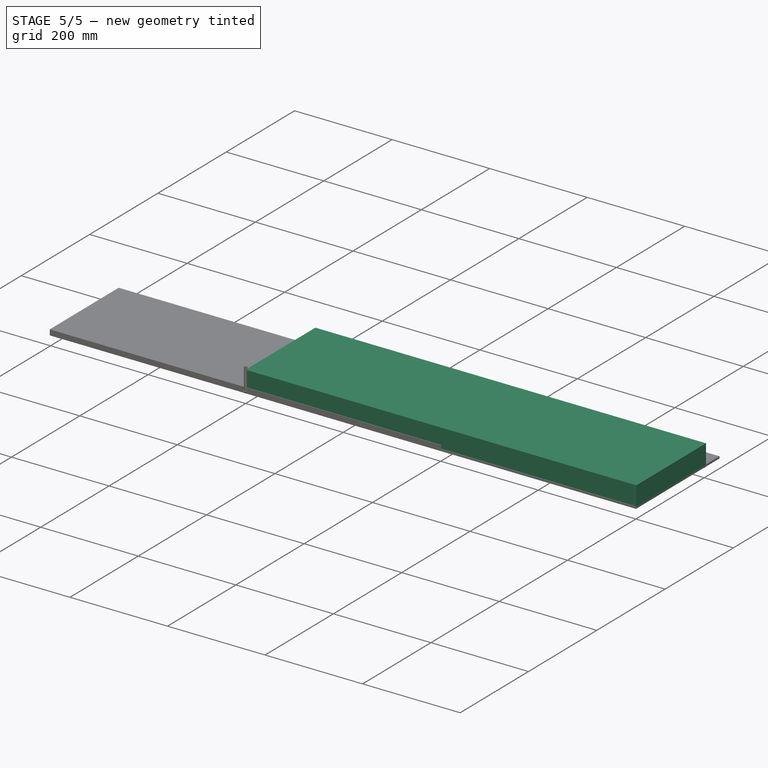
[diagram: stage 5 of 5 — iso view after this stage's code; geometry added in this stage tinted green]
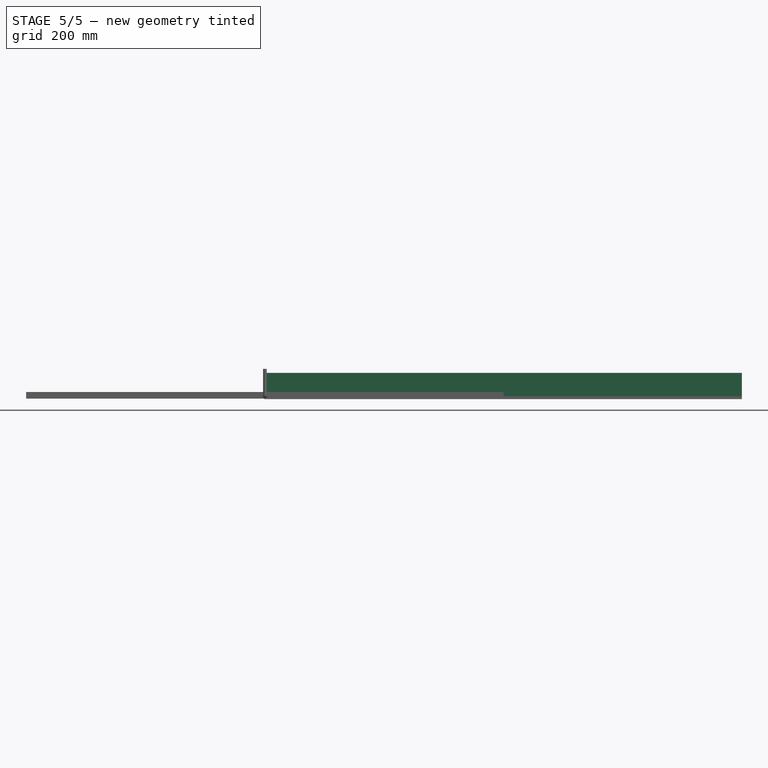
[diagram: stage 5 of 5 — front view after this stage's code; geometry added in this stage tinted green]
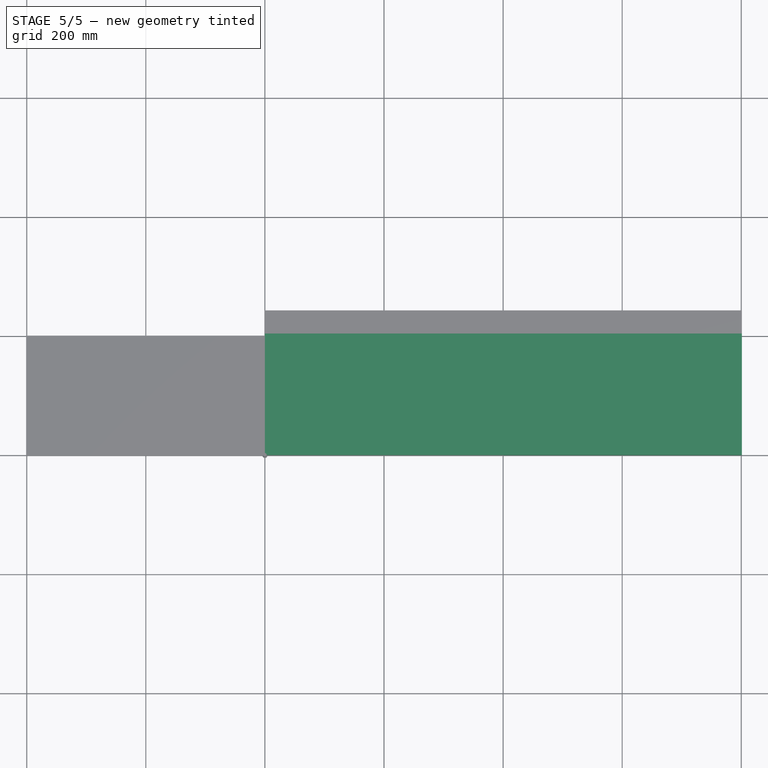
[diagram: stage 5 of 5 — top view after this stage's code; geometry added in this stage tinted green]
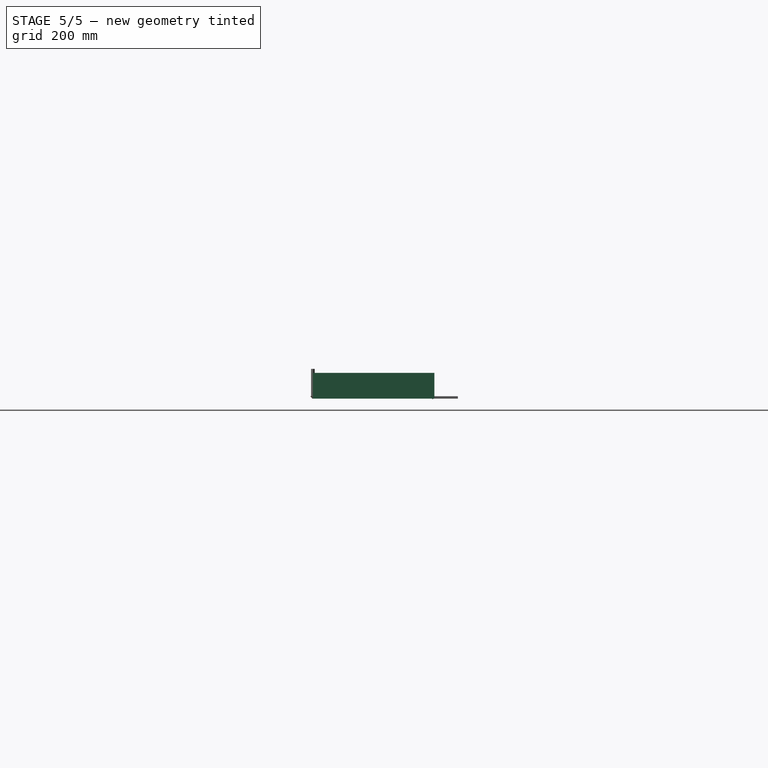
[diagram: stage 5 of 5 — right view after this stage's code; geometry added in this stage tinted green]
FEATURE [PartDesign::LinearPattern] LinearPattern
  Direction = -> Sketch001 [H_Axis]
  Length = 349.65
  Occurrences = 8
  expr: Length = (<<cutting_roll>>#Pad.Length + <<cutting_roll>>#<<disk_sketch>>.Constraints.thickness_x2 * 2) * (Occurrences - 1)
FEATURE [PartDesign::CoordinateSystem] Local_CS
  AttacherType = Attacher::AttachEngine3D
  AttachmentOffset = pos=(0,61,3) rot=(0,0,1;0rad)
  MapMode = 5
  Placement = pos=(0,61,3) rot=(0,0,1;0rad)
  Support = -> [XY_Plane]
  expr: .AttachmentOffset.Base.y = Sketch001.AttachmentOffset.Base.y + Sketch001.Constraints.length / 2
  expr: .AttachmentOffset.Base.z = Pad.Length
FEATURE [App::FeaturePython] SetupSheet  # Path/CAM operation (typed FeaturePython)
  ClearanceHeightExpression = OpStockZMax+SetupSheet.ClearanceHeightOffset
  ClearanceHeightOffset = 5
  CoolantMode = 0
  CoolantModes = None | Flood | Mist
  FinalDepthExpression = OpFinalDepth
  HorizRapid = 0
  SafeHeightExpression = OpStockZMax+SetupSheet.SafeHeightOffset
  SafeHeightOffset = 3
  StartDepthExpression = OpStartDepth
  StepDownExpression = OpToolDiameter
  VertRapid = 0
FEATURE [Part::FeaturePython] ToolBit001  label="3.175mm Endmill007"  # Path/CAM toolbit (typed FeaturePython)
  BitPropertyNames = Chipload | CuttingEdgeHeight | Diameter | Flutes | Length | Material | ShankDiameter | SpindleDirection
  BitShape = <path>
  Chipload = 0
  CuttingEdgeHeight = 30
  Diameter = 3.17
  File = <userpath>/.local/share/FreeCAD/Macro/Bit/3.125mm_Endmill.fctb
  Flutes = 0
  Length = 10
  Material = 0
  ShankDiameter = 3
  ShapeName = endmill
  SpindleDirection = 0
FEATURE [App::DocumentObjectGroup] Model001
  Group = -> [Clone001]
FEATURE [Part::FeaturePython] Stock001  # WARN: FeaturePython — macro-defined, semantics opaque (R4)
  Base = -> Model001
  ExtXneg = 1
  ExtXpos = 1
  ExtYneg = 1
  ExtYpos = 1
  ExtZneg = 0.1
  ExtZpos = 1
  Placement = pos=(-400,0,0) rot=(0,0,1;0rad)
  StockType = FromBase
FEATURE [PartDesign::Body] Body  label="plywood_shield"
  Group = -> [Sketch,Pad,Sketch001,Pocket,Mirrored,MultiTransform,LinearPattern,Local_CS,LinearPattern001,Bend]
  Origin = -> Origin
  Tip = -> Bend
FEATURE [Part::FeaturePython] Clone  label="Model-plywood_shield"  # Draft clone (typed FeaturePython)
  AttacherType = Attacher::AttachEngine3D
  Fuse = false
  Objects = -> [Body]
  PathResource = Model
  Placement = pos=(400,0,0) rot=(0,0,1;0rad)
  Scale = (1,1,1)
FEATURE [App::DocumentObjectGroup] Model
  Group = -> [Clone]
FEATURE [Part::FeaturePython] Stock  # WARN: FeaturePython — macro-defined, semantics opaque (R4)
  Base = -> Model
  ExtXneg = 0
  ExtXpos = 1
  ExtYneg = 0
  ExtYpos = 1
  ExtZneg = 0.1
  ExtZpos = 0
  StockType = FromBase
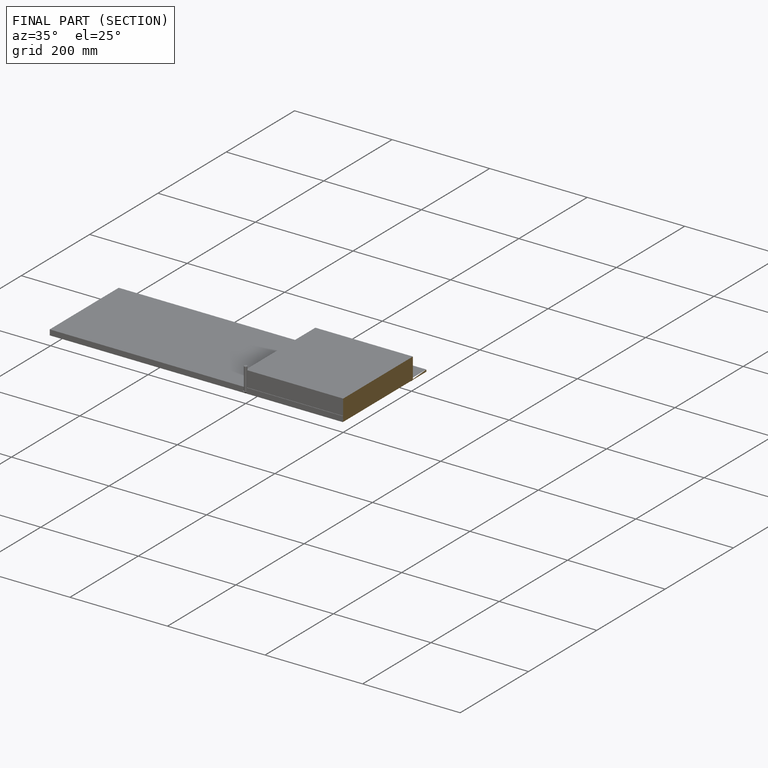
[diagram: finished part — half-section view (interior)]
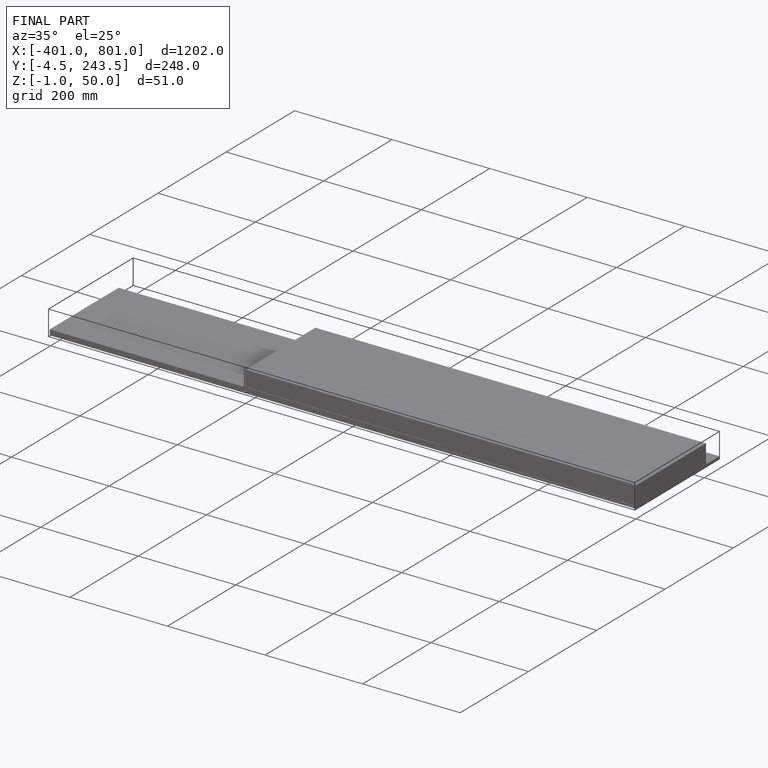
[diagram: finished part — iso view with bounding-box wireframe]
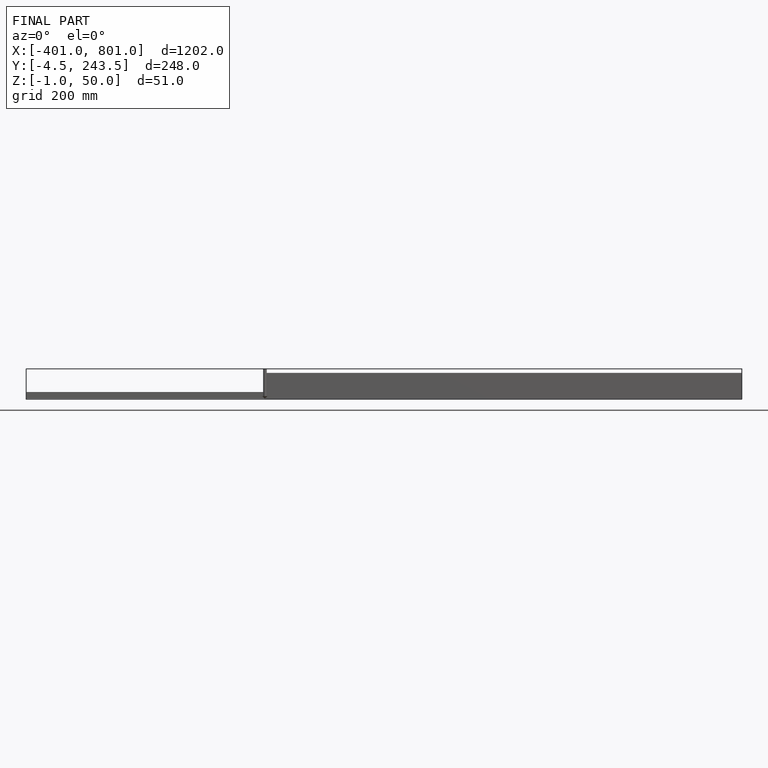
[diagram: finished part — front view with bounding-box wireframe]
